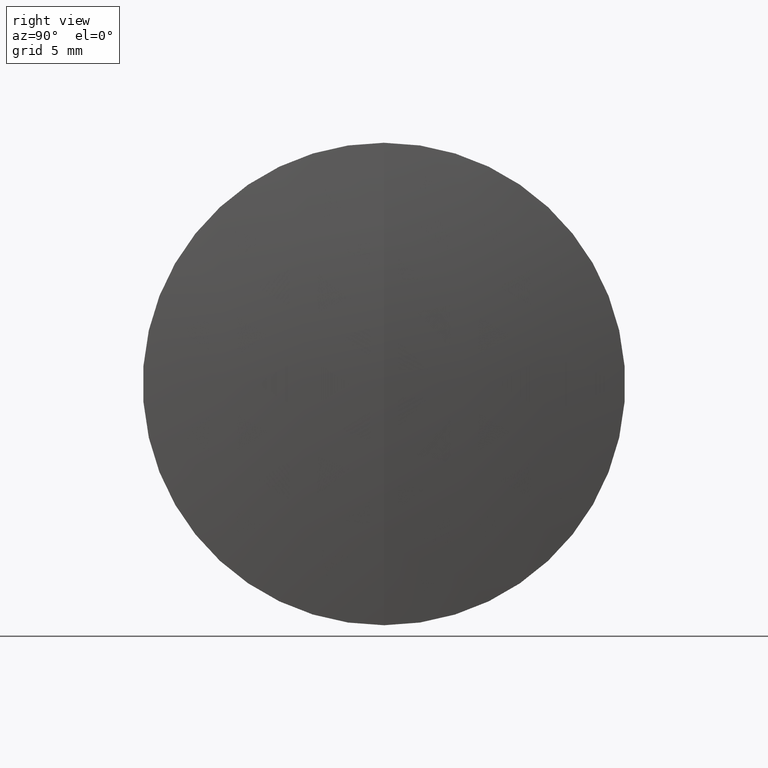
[diagram: clean part render]
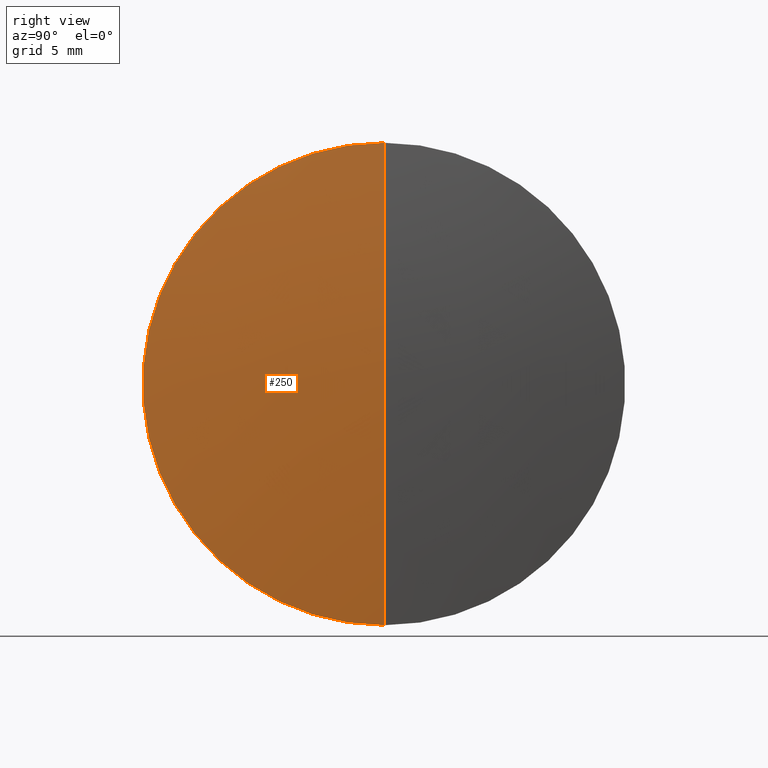
[diagram: same view with one face highlighted and labeled with its STEP entity id]
A machine part, right view. The second image highlights one B-rep face of the part: STEP entity #250.
In plain terms, the highlighted spherical surface has radius 102.1 mm.
Its self-contained STEP definition (entity closure, byte-faithful):
#4 = ORIENTED_EDGE ( 'NONE', *, *, #108, .F. ) ;
#11 = EDGE_CURVE ( 'NONE', #22, #177, #236, .T. ) ;
#15 = CIRCLE ( 'NONE', #157, 12.69999999999998200 ) ;
#21 = CARTESIAN_POINT ( 'NONE',  ( 229.2421632578002000, 0.0000000000000000000, 6.251821909647237500E-015 ) ) ;
#22 = VERTEX_POINT ( 'NONE', #21 ) ;
#32 = EDGE_LOOP ( 'NONE', ( #4, #306, #97 ) ) ;
#53 = CARTESIAN_POINT ( 'NONE',  ( 228.4492212547630700, 1.555301434917136500E-015, -12.69999999999998200 ) ) ;
#97 = ORIENTED_EDGE ( 'NONE', *, *, #201, .F. ) ;
#108 = EDGE_CURVE ( 'NONE', #22, #284, #311, .T. ) ;
#111 = CARTESIAN_POINT ( 'NONE',  ( 228.4492212547630700, 0.0000000000000000000, 0.0000000000000000000 ) ) ;
#129 = DIRECTION ( 'NONE',  ( 0.0000000000000000000, -1.000000000000000000, 0.0000000000000000000 ) ) ;
#136 = DIRECTION ( 'NONE',  ( 0.0000000000000000000, 1.000000000000000000, 0.0000000000000000000 ) ) ;
#143 = AXIS2_PLACEMENT_3D ( 'NONE', #186, #337, #155 ) ;
#155 = DIRECTION ( 'NONE',  ( 0.0000000000000000000, -1.224646799147353200E-016, 1.000000000000000000 ) ) ;
#157 = AXIS2_PLACEMENT_3D ( 'NONE', #111, #301, #344 ) ;
#165 = AXIS2_PLACEMENT_3D ( 'NONE', #319, #129, #296 ) ;
#177 = VERTEX_POINT ( 'NONE', #333 ) ;
#186 = CARTESIAN_POINT ( 'NONE',  ( 127.1421632578002100, 0.0000000000000000000, 0.0000000000000000000 ) ) ;
#199 = AXIS2_PLACEMENT_3D ( 'NONE', #224, #136, #297 ) ;
#201 = EDGE_CURVE ( 'NONE', #284, #177, #15, .T. ) ;
#204 = SPHERICAL_SURFACE ( 'NONE', #199, 102.0999999999999900 ) ;
#224 = CARTESIAN_POINT ( 'NONE',  ( 127.1421632578002100, 0.0000000000000000000, 0.0000000000000000000 ) ) ;
#236 = CIRCLE ( 'NONE', #165, 102.0999999999999900 ) ;
#250 = ADVANCED_FACE ( 'NONE', ( #280 ), #204, .T. ) ;
#280 = FACE_OUTER_BOUND ( 'NONE', #32, .T. ) ;
#284 = VERTEX_POINT ( 'NONE', #53 ) ;
#296 = DIRECTION ( 'NONE',  ( 0.0000000000000000000, 0.0000000000000000000, -1.000000000000000000 ) ) ;
#297 = DIRECTION ( 'NONE',  ( 0.0000000000000000000, 0.0000000000000000000, 1.000000000000000000 ) ) ;
#301 = DIRECTION ( 'NONE',  ( -1.000000000000000000, -0.0000000000000000000, -0.0000000000000000000 ) ) ;
#306 = ORIENTED_EDGE ( 'NONE', *, *, #11, .T. ) ;
#311 = CIRCLE ( 'NONE', #143, 102.0999999999999900 ) ;
#319 = CARTESIAN_POINT ( 'NONE',  ( 127.1421632578002100, 0.0000000000000000000, 0.0000000000000000000 ) ) ;
#333 = CARTESIAN_POINT ( 'NONE',  ( 228.4492212547630700, 0.0000000000000000000, 12.69999999999998200 ) ) ;
#337 = DIRECTION ( 'NONE',  ( -0.0000000000000000000, 1.000000000000000000, 1.224646799147353200E-016 ) ) ;
#344 = DIRECTION ( 'NONE',  ( 0.0000000000000000000, 0.0000000000000000000, 1.000000000000000000 ) ) ;